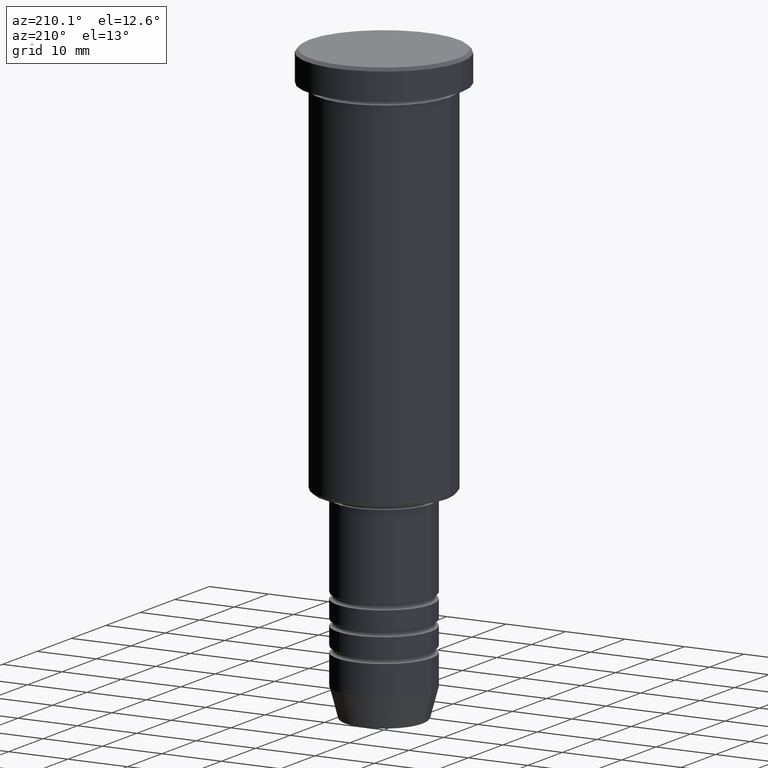
[diagram: clean part render]
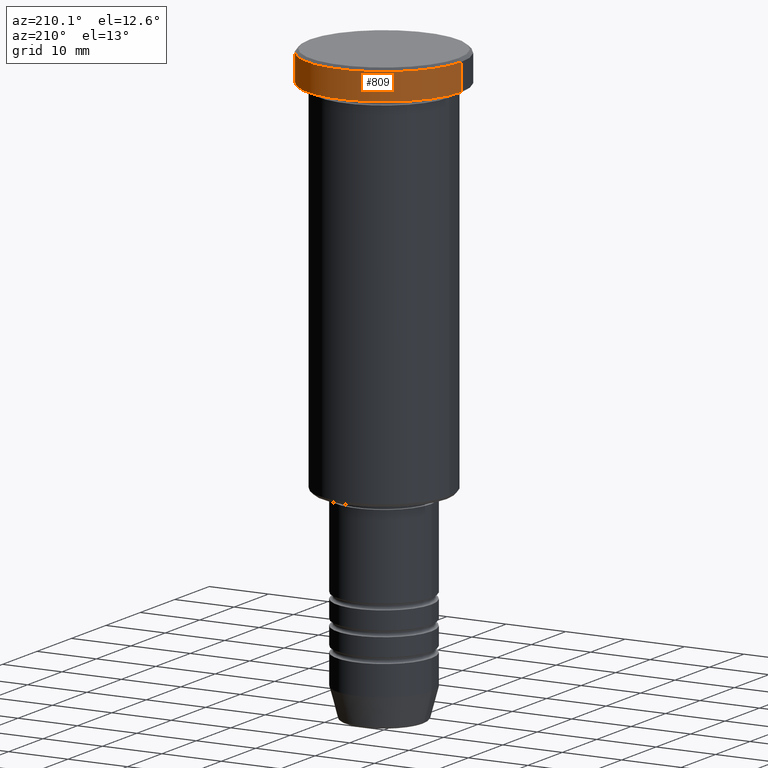
[diagram: same view with one face highlighted and labeled with its STEP entity id]
A machine part, auxiliary view. The second image highlights one B-rep face of the part: STEP entity #809.
In plain terms, the highlighted cylindrical surface (partial cylindrical patch) has radius 13 mm, axis along (-0, -0, 1).
Its self-contained STEP definition (entity closure, byte-faithful):
#51 = ORIENTED_EDGE ( 'NONE', *, *, #522, .T. ) ;
#104 = LINE ( 'NONE', #766, #203 ) ;
#120 = VERTEX_POINT ( 'NONE', #733 ) ;
#156 = EDGE_CURVE ( 'NONE', #676, #1169, #104, .T. ) ;
#163 = CARTESIAN_POINT ( 'NONE',  ( 0.000000000000000000, 0.000000000000000000, 0.000000000000000000 ) ) ;
#197 = DIRECTION ( 'NONE',  ( 1.000000000000000000, 0.000000000000000000, 0.000000000000000000 ) ) ;
#203 = VECTOR ( 'NONE', #579, 1000.000000000000000 ) ;
#242 = CIRCLE ( 'NONE', #1088, 13.00000000000000000 ) ;
#262 = ORIENTED_EDGE ( 'NONE', *, *, #704, .T. ) ;
#267 = DIRECTION ( 'NONE',  ( -0.000000000000000000, -0.000000000000000000, 1.000000000000000000 ) ) ;
#284 = CIRCLE ( 'NONE', #1107, 13.00000000000000000 ) ;
#303 = AXIS2_PLACEMENT_3D ( 'NONE', #163, #1082, #979 ) ;
#314 = DIRECTION ( 'NONE',  ( -0.000000000000000000, -0.000000000000000000, 1.000000000000000000 ) ) ;
#419 = DIRECTION ( 'NONE',  ( 1.000000000000000000, 0.000000000000000000, 0.000000000000000000 ) ) ;
#511 = CYLINDRICAL_SURFACE ( 'NONE', #303, 13.00000000000000000 ) ;
#522 = EDGE_CURVE ( 'NONE', #120, #857, #1095, .T. ) ;
#523 = CARTESIAN_POINT ( 'NONE',  ( -13.00000000000000000, 1.592040838891559095E-15, -0.5000000000000073275 ) ) ;
#579 = DIRECTION ( 'NONE',  ( -0.000000000000000000, -0.000000000000000000, 1.000000000000000000 ) ) ;
#590 = DIRECTION ( 'NONE',  ( 0.000000000000000000, 0.000000000000000000, -1.000000000000000000 ) ) ;
#604 = CARTESIAN_POINT ( 'NONE',  ( 0.000000000000000000, 0.000000000000000000, -0.5000000000000073275 ) ) ;
#634 = EDGE_CURVE ( 'NONE', #857, #1169, #242, .T. ) ;
#676 = VERTEX_POINT ( 'NONE', #775 ) ;
#704 = EDGE_CURVE ( 'NONE', #676, #120, #284, .T. ) ;
#733 = CARTESIAN_POINT ( 'NONE',  ( -13.00000000000000000, 1.592040838891559095E-15, -5.000000000000000000 ) ) ;
#766 = CARTESIAN_POINT ( 'NONE',  ( 13.00000000000000000, 0.000000000000000000, 0.000000000000000000 ) ) ;
#768 = CARTESIAN_POINT ( 'NONE',  ( 0.000000000000000000, 0.000000000000000000, -5.000000000000000000 ) ) ;
#775 = CARTESIAN_POINT ( 'NONE',  ( 13.00000000000000000, 0.000000000000000000, -5.000000000000000000 ) ) ;
#809 = ADVANCED_FACE ( 'NONE', ( #971 ), #511, .T. ) ;
#857 = VERTEX_POINT ( 'NONE', #523 ) ;
#873 = EDGE_LOOP ( 'NONE', ( #262, #51, #904, #1027 ) ) ;
#904 = ORIENTED_EDGE ( 'NONE', *, *, #634, .T. ) ;
#971 = FACE_OUTER_BOUND ( 'NONE', #873, .T. ) ;
#979 = DIRECTION ( 'NONE',  ( 1.000000000000000000, 0.000000000000000000, 0.000000000000000000 ) ) ;
#1027 = ORIENTED_EDGE ( 'NONE', *, *, #156, .F. ) ;
#1060 = CARTESIAN_POINT ( 'NONE',  ( 13.00000000000000000, 0.000000000000000000, -0.5000000000000073275 ) ) ;
#1079 = CARTESIAN_POINT ( 'NONE',  ( -13.00000000000000000, 1.592040838891559095E-15, 0.000000000000000000 ) ) ;
#1082 = DIRECTION ( 'NONE',  ( -0.000000000000000000, -0.000000000000000000, 1.000000000000000000 ) ) ;
#1088 = AXIS2_PLACEMENT_3D ( 'NONE', #604, #590, #197 ) ;
#1095 = LINE ( 'NONE', #1079, #1125 ) ;
#1107 = AXIS2_PLACEMENT_3D ( 'NONE', #768, #314, #419 ) ;
#1125 = VECTOR ( 'NONE', #267, 1000.000000000000000 ) ;
#1169 = VERTEX_POINT ( 'NONE', #1060 ) ;